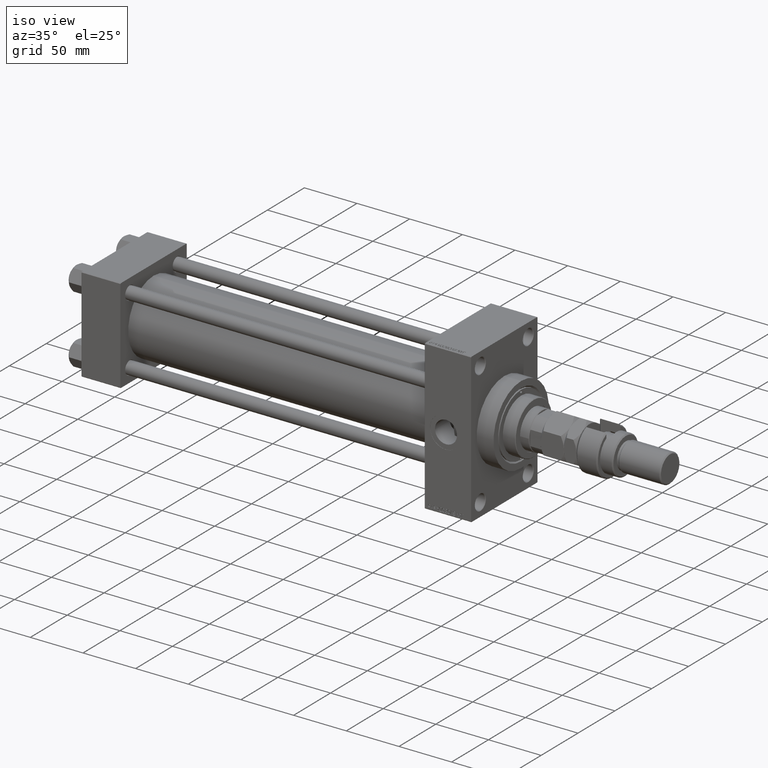
[diagram: clean part render]
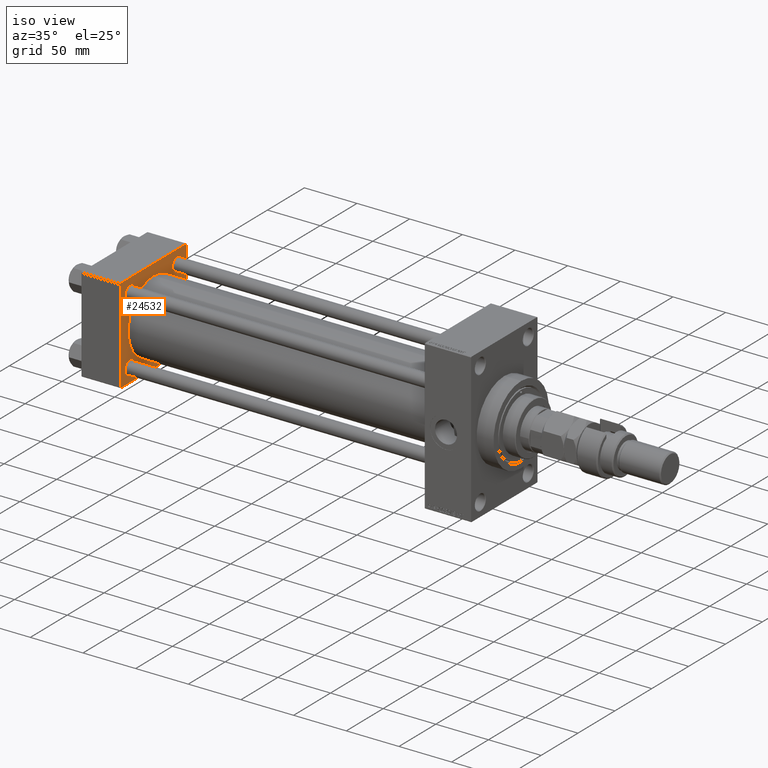
[diagram: same view with one face highlighted and labeled with its STEP entity id]
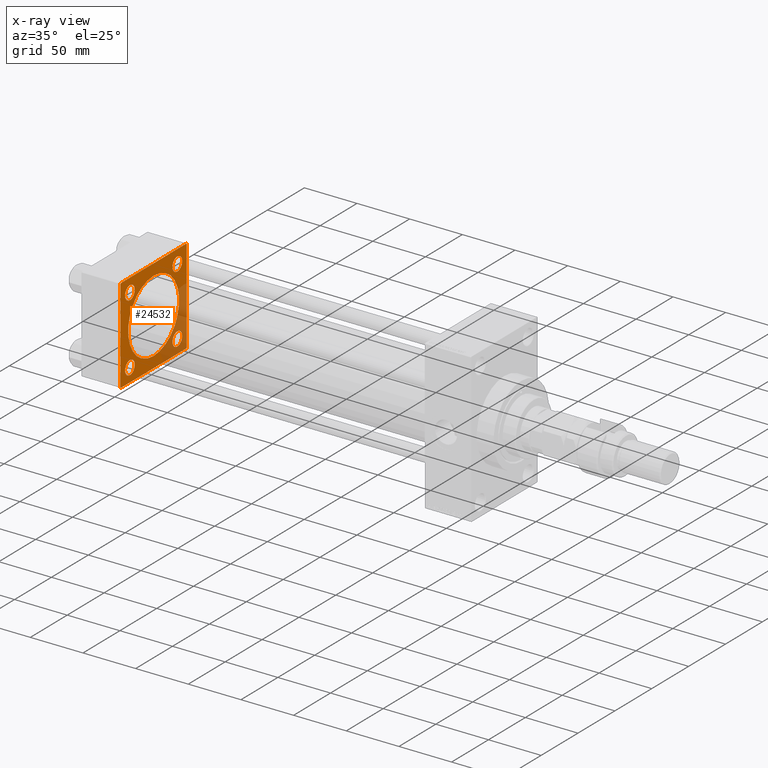
[diagram: x-ray of the same camera — body ghosted, the highlighted face saturated]
A machine part, iso view. The second image highlights one B-rep face of the part: STEP entity #24532.
The next image is the same camera in x-ray: the body ghosted, the highlighted face saturated — about 25% of this face is hidden behind the body in this view.
In plain terms, the highlighted planar face has unit normal (-1, 0, 0).
Its self-contained STEP definition (entity closure, byte-faithful):
#22 = LINE ( 'NONE', #23954, #49587 ) ;
#326 = EDGE_CURVE ( 'NONE', #32053, #45471, #44080, .T. ) ;
#607 = DIRECTION ( 'NONE',  ( 0.000000000000000000, 0.000000000000000000, 1.000000000000000000 ) ) ;
#629 = VECTOR ( 'NONE', #10530, 1000.000000000000114 ) ;
#634 = FACE_BOUND ( 'NONE', #25587, .T. ) ;
#669 = AXIS2_PLACEMENT_3D ( 'NONE', #21679, #21929, #37420 ) ;
#883 = DIRECTION ( 'NONE',  ( 1.000000000000000000, -0.000000000000000000, 0.000000000000000000 ) ) ;
#1016 = DIRECTION ( 'NONE',  ( 0.000000000000000000, 7.709882115452476934E-17, -1.000000000000000000 ) ) ;
#1096 = EDGE_CURVE ( 'NONE', #23123, #19110, #9144, .T. ) ;
#1372 = EDGE_CURVE ( 'NONE', #19110, #23123, #3448, .T. ) ;
#1591 = CARTESIAN_POINT ( 'NONE',  ( 37.00000000000000000, -44.49999999999995737, -45.00000000000000000 ) ) ;
#1795 = ORIENTED_EDGE ( 'NONE', *, *, #11638, .T. ) ;
#1797 = ORIENTED_EDGE ( 'NONE', *, *, #38728, .T. ) ;
#1957 = VERTEX_POINT ( 'NONE', #37763 ) ;
#2065 = VERTEX_POINT ( 'NONE', #28081 ) ;
#2391 = CARTESIAN_POINT ( 'NONE',  ( 37.00000000000000000, -45.00000000000000711, 44.49999999999997158 ) ) ;
#2534 = CARTESIAN_POINT ( 'NONE',  ( 37.00000000000000000, 44.99999999999998579, 45.00000000000001421 ) ) ;
#2588 = VECTOR ( 'NONE', #45508, 1000.000000000000000 ) ;
#3350 = CARTESIAN_POINT ( 'NONE',  ( 37.00000000000000000, 32.14999999999999147, -32.15000000000000568 ) ) ;
#3448 = CIRCLE ( 'NONE', #7516, 6.499999999999950262 ) ;
#3779 = VERTEX_POINT ( 'NONE', #48227 ) ;
#4624 = VERTEX_POINT ( 'NONE', #24119 ) ;
#4669 = DIRECTION ( 'NONE',  ( -1.000000000000000000, 0.000000000000000000, -0.000000000000000000 ) ) ;
#4971 = CIRCLE ( 'NONE', #35832, 6.500000000000005329 ) ;
#5165 = EDGE_CURVE ( 'NONE', #44100, #47320, #27175, .T. ) ;
#5401 = CARTESIAN_POINT ( 'NONE',  ( 37.00000000000000000, 44.99999999999998579, -44.99999999999998579 ) ) ;
#5493 = EDGE_CURVE ( 'NONE', #2065, #31669, #40186, .T. ) ;
#5587 = DIRECTION ( 'NONE',  ( -0.000000000000000000, 0.7071067811865474617, 0.7071067811865474617 ) ) ;
#6695 = DIRECTION ( 'NONE',  ( -1.000000000000000000, 0.000000000000000000, -0.000000000000000000 ) ) ;
#6873 = ORIENTED_EDGE ( 'NONE', *, *, #35157, .T. ) ;
#6937 = EDGE_CURVE ( 'NONE', #17099, #42812, #41305, .T. ) ;
#7071 = ORIENTED_EDGE ( 'NONE', *, *, #1096, .T. ) ;
#7516 = AXIS2_PLACEMENT_3D ( 'NONE', #3350, #10475, #33878 ) ;
#7723 = CARTESIAN_POINT ( 'NONE',  ( 37.00000000000000000, 44.49999999999998579, -44.99999999999998579 ) ) ;
#7962 = ORIENTED_EDGE ( 'NONE', *, *, #44467, .T. ) ;
#8408 = DIRECTION ( 'NONE',  ( -1.000000000000000000, 0.000000000000000000, -0.000000000000000000 ) ) ;
#8497 = VERTEX_POINT ( 'NONE', #15740 ) ;
#8539 = CARTESIAN_POINT ( 'NONE',  ( 37.00000000000000000, -32.14999999999997726, 25.65000000000000568 ) ) ;
#8585 = CARTESIAN_POINT ( 'NONE',  ( 37.00000000000000000, -45.00000000000000711, 44.49999999999997158 ) ) ;
#9067 = VECTOR ( 'NONE', #27801, 1000.000000000000114 ) ;
#9088 = VERTEX_POINT ( 'NONE', #50058 ) ;
#9144 = CIRCLE ( 'NONE', #37576, 6.499999999999950262 ) ;
#9940 = ORIENTED_EDGE ( 'NONE', *, *, #6937, .T. ) ;
#10435 = ORIENTED_EDGE ( 'NONE', *, *, #1372, .T. ) ;
#10448 = CARTESIAN_POINT ( 'NONE',  ( 37.00000000000000000, -32.14999999999997726, -32.15000000000001279 ) ) ;
#10475 = DIRECTION ( 'NONE',  ( -1.000000000000000000, 0.000000000000000000, -0.000000000000000000 ) ) ;
#10530 = DIRECTION ( 'NONE',  ( -0.000000000000000000, -0.7071067811865425767, -0.7071067811865524577 ) ) ;
#10679 = ORIENTED_EDGE ( 'NONE', *, *, #27758, .F. ) ;
#10702 = AXIS2_PLACEMENT_3D ( 'NONE', #26399, #25388, #30454 ) ;
#11638 = EDGE_CURVE ( 'NONE', #47320, #44100, #4971, .T. ) ;
#11931 = AXIS2_PLACEMENT_3D ( 'NONE', #16166, #20484, #47670 ) ;
#12784 = VECTOR ( 'NONE', #47133, 1000.000000000000000 ) ;
#13207 = EDGE_CURVE ( 'NONE', #31669, #2065, #37499, .T. ) ;
#13231 = EDGE_LOOP ( 'NONE', ( #7071, #10435 ) ) ;
#14524 = DIRECTION ( 'NONE',  ( 0.000000000000000000, 0.000000000000000000, 1.000000000000000000 ) ) ;
#14543 = ORIENTED_EDGE ( 'NONE', *, *, #32515, .T. ) ;
#14601 = LINE ( 'NONE', #29606, #17144 ) ;
#14771 = ORIENTED_EDGE ( 'NONE', *, *, #5493, .T. ) ;
#15740 = CARTESIAN_POINT ( 'NONE',  ( 37.00000000000000000, 44.49999999999998579, 45.00000000000001421 ) ) ;
#16166 = CARTESIAN_POINT ( 'NONE',  ( 37.00000000000000000, 0.000000000000000000, 0.000000000000000000 ) ) ;
#16384 = EDGE_CURVE ( 'NONE', #24639, #8497, #27559, .T. ) ;
#16532 = AXIS2_PLACEMENT_3D ( 'NONE', #41551, #6695, #30113 ) ;
#16973 = VERTEX_POINT ( 'NONE', #39860 ) ;
#17099 = VERTEX_POINT ( 'NONE', #37025 ) ;
#17144 = VECTOR ( 'NONE', #49689, 1000.000000000000114 ) ;
#17390 = DIRECTION ( 'NONE',  ( -1.000000000000000000, 0.000000000000000000, -0.000000000000000000 ) ) ;
#17457 = ORIENTED_EDGE ( 'NONE', *, *, #39888, .T. ) ;
#18465 = VERTEX_POINT ( 'NONE', #23331 ) ;
#18719 = EDGE_LOOP ( 'NONE', ( #7962, #48311 ) ) ;
#19110 = VERTEX_POINT ( 'NONE', #21753 ) ;
#19631 = CARTESIAN_POINT ( 'NONE',  ( 37.00000000000000000, -32.14999999999997726, 32.15000000000001279 ) ) ;
#20484 = DIRECTION ( 'NONE',  ( -1.000000000000000000, 0.000000000000000000, -0.000000000000000000 ) ) ;
#21458 = CARTESIAN_POINT ( 'NONE',  ( 37.00000000000000000, 32.14999999999999147, 32.15000000000000568 ) ) ;
#21679 = CARTESIAN_POINT ( 'NONE',  ( 36.99999999999997868, -2.602085213965210642E-15, 0.000000000000000000 ) ) ;
#21753 = CARTESIAN_POINT ( 'NONE',  ( 37.00000000000000000, 32.14999999999999147, -25.65000000000005542 ) ) ;
#21901 = LINE ( 'NONE', #2534, #45381 ) ;
#21929 = DIRECTION ( 'NONE',  ( 1.000000000000000000, -0.000000000000000000, 0.000000000000000000 ) ) ;
#22739 = CARTESIAN_POINT ( 'NONE',  ( 37.00000000000000000, 44.99999999999998579, 45.00000000000001421 ) ) ;
#23123 = VERTEX_POINT ( 'NONE', #29205 ) ;
#23331 = CARTESIAN_POINT ( 'NONE',  ( 36.99999999999997868, 1.622946243093158675E-15, -34.50000000000000000 ) ) ;
#23539 = CARTESIAN_POINT ( 'NONE',  ( 37.00000000000000000, 32.14999999999999147, -32.15000000000000568 ) ) ;
#23954 = CARTESIAN_POINT ( 'NONE',  ( 37.00000000000000000, -45.00000000000000711, 45.00000000000000000 ) ) ;
#24053 = PLANE ( 'NONE',  #11931 ) ;
#24119 = CARTESIAN_POINT ( 'NONE',  ( 37.00000000000000000, 32.14999999999999147, 25.65000000000005542 ) ) ;
#24201 = EDGE_LOOP ( 'NONE', ( #34199, #14543, #10679, #38717, #6873, #9940, #1797, #17457 ) ) ;
#24532 = ADVANCED_FACE ( 'NONE', ( #43118, #46693, #634, #36217, #43367, #46949 ), #24053, .F. ) ;
#24639 = VERTEX_POINT ( 'NONE', #39541 ) ;
#25388 = DIRECTION ( 'NONE',  ( -1.000000000000000000, 0.000000000000000000, -0.000000000000000000 ) ) ;
#25587 = EDGE_LOOP ( 'NONE', ( #29622, #1795 ) ) ;
#26334 = AXIS2_PLACEMENT_3D ( 'NONE', #21458, #17390, #41518 ) ;
#26399 = CARTESIAN_POINT ( 'NONE',  ( 37.00000000000000000, -32.14999999999997726, -32.15000000000001279 ) ) ;
#26670 = VECTOR ( 'NONE', #5587, 1000.000000000000114 ) ;
#26711 = AXIS2_PLACEMENT_3D ( 'NONE', #32420, #883, #32166 ) ;
#26801 = LINE ( 'NONE', #22739, #12784 ) ;
#27175 = CIRCLE ( 'NONE', #28004, 6.500000000000005329 ) ;
#27432 = EDGE_LOOP ( 'NONE', ( #14771, #39271 ) ) ;
#27526 = CIRCLE ( 'NONE', #26711, 34.50000000000000000 ) ;
#27559 = LINE ( 'NONE', #43057, #9067 ) ;
#27758 = EDGE_CURVE ( 'NONE', #24639, #1957, #26801, .T. ) ;
#27801 = DIRECTION ( 'NONE',  ( 0.000000000000000000, -0.7071067811865474617, 0.7071067811865474617 ) ) ;
#28004 = AXIS2_PLACEMENT_3D ( 'NONE', #42364, #43381, #35247 ) ;
#28081 = CARTESIAN_POINT ( 'NONE',  ( 37.00000000000000000, -32.14999999999997726, -38.65000000000001990 ) ) ;
#29205 = CARTESIAN_POINT ( 'NONE',  ( 37.00000000000000000, 32.14999999999999147, -38.64999999999995595 ) ) ;
#29509 = CIRCLE ( 'NONE', #16532, 6.499999999999950262 ) ;
#29606 = CARTESIAN_POINT ( 'NONE',  ( 37.00000000000000000, -44.49999999999998579, -45.00000000000000000 ) ) ;
#29622 = ORIENTED_EDGE ( 'NONE', *, *, #5165, .T. ) ;
#29768 = DIRECTION ( 'NONE',  ( 0.000000000000000000, -1.000000000000000000, -1.541976423090495387E-16 ) ) ;
#29823 = EDGE_CURVE ( 'NONE', #3779, #18465, #44508, .T. ) ;
#30113 = DIRECTION ( 'NONE',  ( 0.000000000000000000, 0.000000000000000000, 1.000000000000000000 ) ) ;
#30454 = DIRECTION ( 'NONE',  ( 0.000000000000000000, 0.000000000000000000, 1.000000000000000000 ) ) ;
#30806 = DIRECTION ( 'NONE',  ( -1.000000000000000000, 0.000000000000000000, -0.000000000000000000 ) ) ;
#30969 = EDGE_CURVE ( 'NONE', #18465, #3779, #27526, .T. ) ;
#31271 = AXIS2_PLACEMENT_3D ( 'NONE', #10448, #30806, #14524 ) ;
#31374 = ORIENTED_EDGE ( 'NONE', *, *, #29823, .F. ) ;
#31669 = VERTEX_POINT ( 'NONE', #46206 ) ;
#32053 = VERTEX_POINT ( 'NONE', #7723 ) ;
#32166 = DIRECTION ( 'NONE',  ( 0.000000000000000000, 0.000000000000000000, 1.000000000000000000 ) ) ;
#32420 = CARTESIAN_POINT ( 'NONE',  ( 36.99999999999997868, -2.602085213965210642E-15, 0.000000000000000000 ) ) ;
#32515 = EDGE_CURVE ( 'NONE', #32053, #1957, #40682, .T. ) ;
#32620 = ORIENTED_EDGE ( 'NONE', *, *, #30969, .F. ) ;
#33878 = DIRECTION ( 'NONE',  ( 0.000000000000000000, 0.000000000000000000, 1.000000000000000000 ) ) ;
#34199 = ORIENTED_EDGE ( 'NONE', *, *, #326, .F. ) ;
#35157 = EDGE_CURVE ( 'NONE', #8497, #17099, #21901, .T. ) ;
#35247 = DIRECTION ( 'NONE',  ( 0.000000000000000000, 0.000000000000000000, 1.000000000000000000 ) ) ;
#35832 = AXIS2_PLACEMENT_3D ( 'NONE', #19631, #8408, #43747 ) ;
#36081 = CIRCLE ( 'NONE', #26334, 6.499999999999950262 ) ;
#36217 = FACE_BOUND ( 'NONE', #18719, .T. ) ;
#36235 = CARTESIAN_POINT ( 'NONE',  ( 37.00000000000000000, -32.14999999999997726, 38.65000000000001990 ) ) ;
#37025 = CARTESIAN_POINT ( 'NONE',  ( 37.00000000000000000, -44.49999999999995737, 45.00000000000000000 ) ) ;
#37420 = DIRECTION ( 'NONE',  ( 0.000000000000000000, 0.000000000000000000, 1.000000000000000000 ) ) ;
#37499 = CIRCLE ( 'NONE', #10702, 6.500000000000005329 ) ;
#37576 = AXIS2_PLACEMENT_3D ( 'NONE', #23539, #4669, #607 ) ;
#37763 = CARTESIAN_POINT ( 'NONE',  ( 37.00000000000000000, 44.99999999999998579, -44.49999999999995737 ) ) ;
#38717 = ORIENTED_EDGE ( 'NONE', *, *, #16384, .T. ) ;
#38728 = EDGE_CURVE ( 'NONE', #42812, #9088, #22, .T. ) ;
#39271 = ORIENTED_EDGE ( 'NONE', *, *, #13207, .T. ) ;
#39541 = CARTESIAN_POINT ( 'NONE',  ( 37.00000000000000000, 44.99999999999998579, 44.50000000000001421 ) ) ;
#39860 = CARTESIAN_POINT ( 'NONE',  ( 37.00000000000000000, 32.14999999999999147, 38.64999999999995595 ) ) ;
#39888 = EDGE_CURVE ( 'NONE', #9088, #45471, #14601, .T. ) ;
#40186 = CIRCLE ( 'NONE', #31271, 6.500000000000005329 ) ;
#40682 = LINE ( 'NONE', #44255, #26670 ) ;
#41305 = LINE ( 'NONE', #2391, #629 ) ;
#41518 = DIRECTION ( 'NONE',  ( 0.000000000000000000, 0.000000000000000000, 1.000000000000000000 ) ) ;
#41551 = CARTESIAN_POINT ( 'NONE',  ( 37.00000000000000000, 32.14999999999999147, 32.15000000000000568 ) ) ;
#42364 = CARTESIAN_POINT ( 'NONE',  ( 37.00000000000000000, -32.14999999999997726, 32.15000000000001279 ) ) ;
#42812 = VERTEX_POINT ( 'NONE', #8585 ) ;
#43057 = CARTESIAN_POINT ( 'NONE',  ( 37.00000000000000000, 44.49999999999998579, 45.00000000000001421 ) ) ;
#43118 = FACE_BOUND ( 'NONE', #27432, .T. ) ;
#43367 = FACE_BOUND ( 'NONE', #44974, .T. ) ;
#43381 = DIRECTION ( 'NONE',  ( -1.000000000000000000, 0.000000000000000000, -0.000000000000000000 ) ) ;
#43747 = DIRECTION ( 'NONE',  ( 0.000000000000000000, 0.000000000000000000, 1.000000000000000000 ) ) ;
#44080 = LINE ( 'NONE', #5401, #2588 ) ;
#44100 = VERTEX_POINT ( 'NONE', #8539 ) ;
#44255 = CARTESIAN_POINT ( 'NONE',  ( 37.00000000000000000, 44.99999999999998579, -44.49999999999998579 ) ) ;
#44467 = EDGE_CURVE ( 'NONE', #4624, #16973, #29509, .T. ) ;
#44508 = CIRCLE ( 'NONE', #669, 34.50000000000000000 ) ;
#44974 = EDGE_LOOP ( 'NONE', ( #31374, #32620 ) ) ;
#45381 = VECTOR ( 'NONE', #29768, 1000.000000000000000 ) ;
#45471 = VERTEX_POINT ( 'NONE', #1591 ) ;
#45508 = DIRECTION ( 'NONE',  ( 0.000000000000000000, -1.000000000000000000, -1.541976423090495633E-16 ) ) ;
#46206 = CARTESIAN_POINT ( 'NONE',  ( 37.00000000000000000, -32.14999999999997726, -25.65000000000000568 ) ) ;
#46693 = FACE_BOUND ( 'NONE', #13231, .T. ) ;
#46949 = FACE_OUTER_BOUND ( 'NONE', #24201, .T. ) ;
#47133 = DIRECTION ( 'NONE',  ( 0.000000000000000000, 0.000000000000000000, -1.000000000000000000 ) ) ;
#47320 = VERTEX_POINT ( 'NONE', #36235 ) ;
#47670 = DIRECTION ( 'NONE',  ( -0.000000000000000000, 0.000000000000000000, 1.000000000000000000 ) ) ;
#48227 = CARTESIAN_POINT ( 'NONE',  ( 36.99999999999997868, -2.602085213965210642E-15, 34.50000000000000000 ) ) ;
#48311 = ORIENTED_EDGE ( 'NONE', *, *, #49715, .T. ) ;
#49587 = VECTOR ( 'NONE', #1016, 1000.000000000000000 ) ;
#49689 = DIRECTION ( 'NONE',  ( 0.000000000000000000, 0.7071067811865474617, -0.7071067811865474617 ) ) ;
#49715 = EDGE_CURVE ( 'NONE', #16973, #4624, #36081, .T. ) ;
#50058 = CARTESIAN_POINT ( 'NONE',  ( 37.00000000000000000, -45.00000000000000000, -44.49999999999995737 ) ) ;